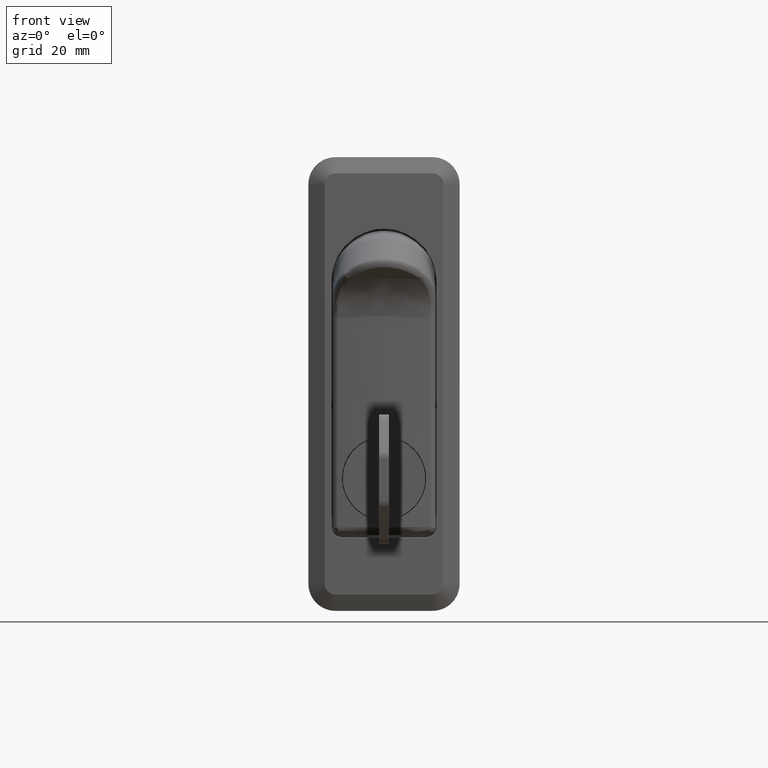
[diagram: clean part render]
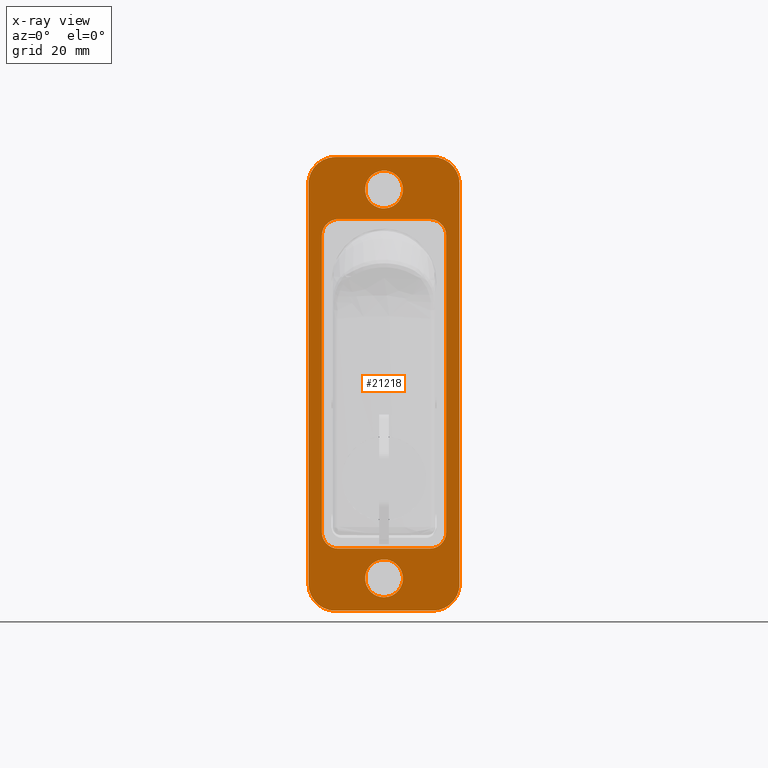
[diagram: x-ray — body ghosted, one internal face saturated and labeled with its STEP entity id]
A machine part, front view, then the same camera in x-ray: the body is ghosted and one INTERNAL B-rep face — a face not visible from any outside direction — is saturated and labeled: STEP entity #21218.
In plain terms, the highlighted face is a freeform B-spline surface patch.
Its self-contained STEP definition (entity closure, byte-faithful):
#15078=CARTESIAN_POINT('',(-3.784089E-015,-3.493471794427236,-55.213669889179393));
#15079=VERTEX_POINT('',#15078);
#15085=CARTESIAN_POINT('',(-3.765665E-015,0.0,-58.500000000000092));
#15086=VERTEX_POINT('',#15085);
#15087=CARTESIAN_POINT('',(-3.765665E-015,0.0,-58.500000000000092));
#15088=CARTESIAN_POINT('',(-3.765665E-015,-3.292471232645310,-58.500000000000078));
#15089=CARTESIAN_POINT('',(-3.784089E-015,-3.493471794427237,-55.213669889179386));
#15097=(BOUNDED_CURVE()B_SPLINE_CURVE(2,(#15087,#15088,#15089),.UNSPECIFIED.,.F.,.U.)B_SPLINE_CURVE_WITH_KNOTS((3,3),(0.500000000000000,0.739332962162213),.UNSPECIFIED.)CURVE()GEOMETRIC_REPRESENTATION_ITEM()RATIONAL_B_SPLINE_CURVE((1.0,0.719603993376605,0.976072041502271))REPRESENTATION_ITEM(''));
#15098=EDGE_CURVE('',#15086,#15079,#15097,.T.);
#15100=CARTESIAN_POINT('',(-3.792348E-015,3.475533342246085,-54.586880178475603));
#15101=VERTEX_POINT('',#15100);
#15102=CARTESIAN_POINT('',(-3.792348E-015,3.475533342246085,-54.586880178475603));
#15103=CARTESIAN_POINT('',(-3.765665E-015,3.500000000000086,-54.792715580990183));
#15104=CARTESIAN_POINT('',(-3.765665E-015,3.500000000000085,-55.0));
#15105=CARTESIAN_POINT('',(-3.765665E-015,3.500000000000084,-58.500000000000078));
#15106=CARTESIAN_POINT('',(-3.765665E-015,0.0,-58.500000000000092));
#15114=(BOUNDED_CURVE()B_SPLINE_CURVE(2,(#15102,#15103,#15104,#15105,#15106),.UNSPECIFIED.,.F.,.U.)B_SPLINE_CURVE_WITH_KNOTS((3,2,3),(0.229562473493691,0.250000000000000,0.500000000000000),.UNSPECIFIED.)CURVE()GEOMETRIC_REPRESENTATION_ITEM()RATIONAL_B_SPLINE_CURVE((0.956026754144856,0.976055948307927,1.0,0.707106781186547,1.0))REPRESENTATION_ITEM(''));
#15115=EDGE_CURVE('',#15101,#15086,#15114,.T.);
#15145=CARTESIAN_POINT('',(-3.765665E-015,0.0,-51.499999999999922));
#15146=VERTEX_POINT('',#15145);
#15147=CARTESIAN_POINT('',(-3.765665E-015,0.0,-51.499999999999922));
#15148=CARTESIAN_POINT('',(-3.765665E-015,3.108610840423213,-51.499999999999908));
#15149=CARTESIAN_POINT('',(-3.792348E-015,3.475533342246085,-54.586880178475603));
#15157=(BOUNDED_CURVE()B_SPLINE_CURVE(2,(#15147,#15148,#15149),.UNSPECIFIED.,.F.,.U.)B_SPLINE_CURVE_WITH_KNOTS((3,3),(0.0,0.229562473493691),.UNSPECIFIED.)CURVE()GEOMETRIC_REPRESENTATION_ITEM()RATIONAL_B_SPLINE_CURVE((1.0,0.731050832878620,0.956026754144856))REPRESENTATION_ITEM(''));
#15158=EDGE_CURVE('',#15146,#15101,#15157,.T.);
#15160=CARTESIAN_POINT('',(-3.784089E-015,-3.493471794427237,-55.213669889179386));
#15161=CARTESIAN_POINT('',(-3.765665E-015,-3.500000000000086,-55.106934672354718));
#15162=CARTESIAN_POINT('',(-3.765665E-015,-3.500000000000085,-55.0));
#15163=CARTESIAN_POINT('',(-3.765665E-015,-3.500000000000084,-51.499999999999908));
#15164=CARTESIAN_POINT('',(-3.765665E-015,0.0,-51.499999999999922));
#15172=(BOUNDED_CURVE()B_SPLINE_CURVE(2,(#15160,#15161,#15162,#15163,#15164),.UNSPECIFIED.,.F.,.U.)B_SPLINE_CURVE_WITH_KNOTS((3,2,3),(0.739332962162212,0.750000000000000,1.0),.UNSPECIFIED.)CURVE()GEOMETRIC_REPRESENTATION_ITEM()RATIONAL_B_SPLINE_CURVE((0.976072041502270,0.987502787809942,1.0,0.707106781186547,1.0))REPRESENTATION_ITEM(''));
#15173=EDGE_CURVE('',#15079,#15146,#15172,.T.);
#15406=CARTESIAN_POINT('',(-3.784089E-015,-3.493471794427236,16.786330110820600));
#15407=VERTEX_POINT('',#15406);
#15413=CARTESIAN_POINT('',(-3.765665E-015,0.0,13.499999999999920));
#15414=VERTEX_POINT('',#15413);
#15415=CARTESIAN_POINT('',(-3.765665E-015,0.0,13.499999999999920));
#15416=CARTESIAN_POINT('',(-3.765665E-015,-3.292471232645269,13.499999999999915));
#15417=CARTESIAN_POINT('',(-3.784089E-015,-3.493471794427237,16.786330110820600));
#15425=(BOUNDED_CURVE()B_SPLINE_CURVE(2,(#15415,#15416,#15417),.UNSPECIFIED.,.F.,.U.)B_SPLINE_CURVE_WITH_KNOTS((3,3),(0.500000000000000,0.739332962162211),.UNSPECIFIED.)CURVE()GEOMETRIC_REPRESENTATION_ITEM()RATIONAL_B_SPLINE_CURVE((1.0,0.719603993376607,0.976072041502266))REPRESENTATION_ITEM(''));
#15426=EDGE_CURVE('',#15414,#15407,#15425,.T.);
#15428=CARTESIAN_POINT('',(-3.792348E-015,3.475533342246085,17.413119821524401));
#15429=VERTEX_POINT('',#15428);
#15430=CARTESIAN_POINT('',(-3.792348E-015,3.475533342246085,17.413119821524401));
#15431=CARTESIAN_POINT('',(-3.765665E-015,3.500000000000085,17.207284419009810));
#15432=CARTESIAN_POINT('',(-3.765665E-015,3.500000000000085,17.0));
#15433=CARTESIAN_POINT('',(-3.765665E-015,3.500000000000084,13.499999999999917));
#15434=CARTESIAN_POINT('',(-3.765665E-015,0.0,13.499999999999920));
#15442=(BOUNDED_CURVE()B_SPLINE_CURVE(2,(#15430,#15431,#15432,#15433,#15434),.UNSPECIFIED.,.F.,.U.)B_SPLINE_CURVE_WITH_KNOTS((3,2,3),(0.229562473493691,0.250000000000000,0.500000000000000),.UNSPECIFIED.)CURVE()GEOMETRIC_REPRESENTATION_ITEM()RATIONAL_B_SPLINE_CURVE((0.956026754144857,0.976055948307928,1.0,0.707106781186547,1.0))REPRESENTATION_ITEM(''));
#15443=EDGE_CURVE('',#15429,#15414,#15442,.T.);
#15473=CARTESIAN_POINT('',(-3.765665E-015,0.0,20.500000000000089));
#15474=VERTEX_POINT('',#15473);
#15475=CARTESIAN_POINT('',(-3.765665E-015,0.0,20.500000000000089));
#15476=CARTESIAN_POINT('',(-3.765665E-015,3.108610840423220,20.500000000000089));
#15477=CARTESIAN_POINT('',(-3.792348E-015,3.475533342246086,17.413119821524397));
#15485=(BOUNDED_CURVE()B_SPLINE_CURVE(2,(#15475,#15476,#15477),.UNSPECIFIED.,.F.,.U.)B_SPLINE_CURVE_WITH_KNOTS((3,3),(0.0,0.229562473493691),.UNSPECIFIED.)CURVE()GEOMETRIC_REPRESENTATION_ITEM()RATIONAL_B_SPLINE_CURVE((1.0,0.731050832878620,0.956026754144857))REPRESENTATION_ITEM(''));
#15486=EDGE_CURVE('',#15474,#15429,#15485,.T.);
#15488=CARTESIAN_POINT('',(-3.784089E-015,-3.493471794427236,16.786330110820604));
#15489=CARTESIAN_POINT('',(-3.765665E-015,-3.500000000000085,16.893065327645278));
#15490=CARTESIAN_POINT('',(-3.765665E-015,-3.500000000000085,17.0));
#15491=CARTESIAN_POINT('',(-3.765665E-015,-3.500000000000084,20.500000000000096));
#15492=CARTESIAN_POINT('',(-3.765665E-015,0.0,20.500000000000089));
#15500=(BOUNDED_CURVE()B_SPLINE_CURVE(2,(#15488,#15489,#15490,#15491,#15492),.UNSPECIFIED.,.F.,.U.)B_SPLINE_CURVE_WITH_KNOTS((3,2,3),(0.739332962162212,0.750000000000000,1.0),.UNSPECIFIED.)CURVE()GEOMETRIC_REPRESENTATION_ITEM()RATIONAL_B_SPLINE_CURVE((0.976072041502268,0.987502787809941,1.0,0.707106781186547,1.0))REPRESENTATION_ITEM(''));
#15501=EDGE_CURVE('',#15407,#15474,#15500,.T.);
#19096=CARTESIAN_POINT('',(-7.327472E-015,-8.500000000000000,-49.489897959078512));
#19097=VERTEX_POINT('',#19096);
#19113=CARTESIAN_POINT('',(0.0,-11.500000000000000,-46.489246068311303));
#19114=VERTEX_POINT('',#19113);
#19128=CARTESIAN_POINT('',(-7.327472E-015,-8.500000000000000,-49.489897959078512));
#19129=CARTESIAN_POINT('',(-7.327472E-015,-8.698103322389844,-49.489897959078512));
#19130=CARTESIAN_POINT('',(7.204405E-031,-8.892896891382499,-49.470464223345637));
#19131=CARTESIAN_POINT('',(0.0,-9.180325795504636,-49.413356023636879));
#19132=CARTESIAN_POINT('',(0.0,-9.275335958924444,-49.389625736119669));
#19133=CARTESIAN_POINT('',(0.0,-9.463720951000243,-49.332563036751182));
#19134=CARTESIAN_POINT('',(0.0,-9.557353599196350,-49.299068871915452));
#19135=CARTESIAN_POINT('',(0.0,-9.829725442996553,-49.186214701680832));
#19136=CARTESIAN_POINT('',(0.0,-10.001972119500820,-49.094134890425622));
#19137=CARTESIAN_POINT('',(0.0,-10.205718896117460,-48.958172897548728));
#19138=CARTESIAN_POINT('',(0.0,-10.245884972545699,-48.929928003611032));
#19139=CARTESIAN_POINT('',(0.0,-10.325031998851429,-48.871299718682252));
#19140=CARTESIAN_POINT('',(0.0,-10.364112700447260,-48.840832943835331));
#19141=CARTESIAN_POINT('',(0.0,-10.478758899893210,-48.746795946410337));
#19142=CARTESIAN_POINT('',(0.0,-10.551504898647870,-48.680824071836170));
#19143=CARTESIAN_POINT('',(0.0,-10.759034846699000,-48.473375175262419));
#19144=CARTESIAN_POINT('',(0.0,-10.883211940670121,-48.322454971470933));
#19145=CARTESIAN_POINT('',(0.0,-11.020295832165610,-48.117657095446759));
#19146=CARTESIAN_POINT('',(0.0,-11.046865896547050,-48.075763451785491));
#19147=CARTESIAN_POINT('',(0.0,-11.097680526473390,-47.991079613937927));
#19148=CARTESIAN_POINT('',(0.0,-11.121948433691630,-47.948269167763222));
#19149=CARTESIAN_POINT('',(0.0,-11.191397228103391,-47.818458274952953));
#19150=CARTESIAN_POINT('',(0.0,-11.275065019801090,-47.641704799631057));
#19151=CARTESIAN_POINT('',(0.0,-11.341144418183710,-47.457718933968863));
#19152=CARTESIAN_POINT('',(0.0,-11.384019816906489,-47.316980995870992));
#19153=CARTESIAN_POINT('',(0.0,-11.397195620824309,-47.269609449695473));
#19154=CARTESIAN_POINT('',(0.0,-11.421275574369620,-47.173932247545352));
#19155=CARTESIAN_POINT('',(0.0,-11.432193215952481,-47.125538149331582));
#19156=CARTESIAN_POINT('',(0.0,-11.480577007297621,-46.883290541038100));
#19157=CARTESIAN_POINT('',(0.0,-11.500000000000000,-46.687348171504652));
#19158=CARTESIAN_POINT('',(0.0,-11.500000000000000,-46.489246068311303));
#19159=B_SPLINE_CURVE_WITH_KNOTS('',3,(#19128,#19129,#19130,#19131,#19132,#19133,#19134,#19135,#19136,#19137,#19138,#19139,#19140,#19141,#19142,#19143,#19144,#19145,#19146,#19147,#19148,#19149,#19150,#19151,#19152,#19153,#19154,#19155,#19156,#19157,#19158),.UNSPECIFIED.,.F.,.U.,(4,2,2,2,2,2,2,2,2,2,2,1,2,2,2,4),(0.0,0.124999999999998,0.187499999999997,0.249999999999996,0.374999999999994,0.406249999999993,0.437499999999993,0.499999999999994,0.624999999999997,0.656249999999996,0.687499999999996,0.749999999999994,0.812499999999993,0.843749999999994,0.874999999999995,1.0),.UNSPECIFIED.);
#19160=EDGE_CURVE('',#19097,#19114,#19159,.T.);
#19182=CARTESIAN_POINT('',(0.0,11.500000000000000,-46.489246068311303));
#19183=VERTEX_POINT('',#19182);
#19184=CARTESIAN_POINT('',(-7.327472E-015,8.500000000000000,-49.489897959078512));
#19185=VERTEX_POINT('',#19184);
#19186=CARTESIAN_POINT('',(0.0,11.500000000000000,-46.489246068311303));
#19187=CARTESIAN_POINT('',(0.0,11.500000000000000,-46.687348891419688));
#19188=CARTESIAN_POINT('',(0.0,11.480579209198069,-46.882144484452347));
#19189=CARTESIAN_POINT('',(0.0,11.423507273291310,-47.169579752218283));
#19190=CARTESIAN_POINT('',(0.0,11.399791922928140,-47.264592599082839));
#19191=CARTESIAN_POINT('',(0.0,11.342764823181369,-47.452984090591130));
#19192=CARTESIAN_POINT('',(0.0,11.309290184363601,-47.546624505002796));
#19193=CARTESIAN_POINT('',(0.0,11.196496636479729,-47.819028274399763));
#19194=CARTESIAN_POINT('',(0.0,11.104463693343250,-47.991299730419087));
#19195=CARTESIAN_POINT('',(0.0,10.968567154026870,-48.195081188096751));
#19196=CARTESIAN_POINT('',(0.0,10.940335700268211,-48.235254389376529));
#19197=CARTESIAN_POINT('',(0.0,10.881734987282460,-48.314416038431020));
#19198=CARTESIAN_POINT('',(0.0,10.851283490346370,-48.353503025297748));
#19199=CARTESIAN_POINT('',(0.0,10.757277731731470,-48.468186481660112));
#19200=CARTESIAN_POINT('',(0.0,10.691326872582881,-48.540956718252339));
#19201=CARTESIAN_POINT('',(0.0,10.483941618008860,-48.748557686328986));
#19202=CARTESIAN_POINT('',(0.0,10.333064634973040,-48.872779889597588));
#19203=CARTESIAN_POINT('',(0.0,10.128321891863489,-49.009917409272703));
#19204=CARTESIAN_POINT('',(0.0,10.086438657043811,-49.036498683091132));
#19205=CARTESIAN_POINT('',(0.0,10.001762990727521,-49.087342113107752));
#19206=CARTESIAN_POINT('',(0.0,9.958956662083107,-49.111623688501723));
#19207=CARTESIAN_POINT('',(0.0,9.829158260518708,-49.181111442307483));
#19208=CARTESIAN_POINT('',(0.0,9.652421793891209,-49.264825698395228));
#19209=CARTESIAN_POINT('',(0.0,9.468454106033995,-49.330941915599261));
#19210=CARTESIAN_POINT('',(0.0,9.327730340383361,-49.373841493507683));
#19211=CARTESIAN_POINT('',(0.0,9.280363610469848,-49.387024788775832));
#19212=CARTESIAN_POINT('',(0.0,9.184696246335951,-49.411118611852260));
#19213=CARTESIAN_POINT('',(0.0,9.136304201934978,-49.422043395851013));
#19214=CARTESIAN_POINT('',(0.0,8.894050096174016,-49.470461727519762));
#19215=CARTESIAN_POINT('',(0.0,8.698104069230965,-49.489897959078512));
#19216=CARTESIAN_POINT('',(0.0,8.500000000000000,-49.489897959078512));
#19217=B_SPLINE_CURVE_WITH_KNOTS('',3,(#19186,#19187,#19188,#19189,#19190,#19191,#19192,#19193,#19194,#19195,#19196,#19197,#19198,#19199,#19200,#19201,#19202,#19203,#19204,#19205,#19206,#19207,#19208,#19209,#19210,#19211,#19212,#19213,#19214,#19215,#19216),.UNSPECIFIED.,.F.,.U.,(4,2,2,2,2,2,2,2,2,2,2,1,2,2,2,4),(0.0,0.125000000000000,0.187499999999998,0.249999999999995,0.374999999999990,0.406249999999989,0.437499999999989,0.499999999999990,0.624999999999990,0.656249999999990,0.687499999999991,0.749999999999992,0.812499999999993,0.843749999999994,0.874999999999995,1.0),.UNSPECIFIED.);
#19218=EDGE_CURVE('',#19183,#19185,#19217,.T.);
#19381=CARTESIAN_POINT('',(0.0,8.500000000000000,11.500000000000000));
#19382=VERTEX_POINT('',#19381);
#19389=CARTESIAN_POINT('',(0.0,11.500000000000000,8.500000000000000));
#19390=VERTEX_POINT('',#19389);
#19396=CARTESIAN_POINT('',(0.0,11.500000000000000,8.500000000000000));
#19397=CARTESIAN_POINT('',(0.0,11.500000000000000,11.500000000000000));
#19398=CARTESIAN_POINT('',(0.0,8.500000000000000,11.500000000000000));
#19406=(BOUNDED_CURVE()B_SPLINE_CURVE(2,(#19396,#19397,#19398),.UNSPECIFIED.,.F.,.U.)CURVE()GEOMETRIC_REPRESENTATION_ITEM()QUASI_UNIFORM_CURVE()RATIONAL_B_SPLINE_CURVE((1.0,0.707106781186548,1.0))REPRESENTATION_ITEM(''));
#19407=EDGE_CURVE('',#19390,#19382,#19406,.T.);
#19457=CARTESIAN_POINT('',(0.0,-11.500000000000000,8.500000000000000));
#19458=VERTEX_POINT('',#19457);
#19465=CARTESIAN_POINT('',(0.0,-8.500000000000000,11.500000000000000));
#19466=VERTEX_POINT('',#19465);
#19472=CARTESIAN_POINT('',(0.0,-8.500000000000000,11.500000000000000));
#19473=CARTESIAN_POINT('',(0.0,-11.500000000000000,11.500000000000000));
#19474=CARTESIAN_POINT('',(0.0,-11.500000000000000,8.500000000000000));
#19482=(BOUNDED_CURVE()B_SPLINE_CURVE(2,(#19472,#19473,#19474),.UNSPECIFIED.,.F.,.U.)CURVE()GEOMETRIC_REPRESENTATION_ITEM()QUASI_UNIFORM_CURVE()RATIONAL_B_SPLINE_CURVE((1.0,0.707106781186548,1.0))REPRESENTATION_ITEM(''));
#19483=EDGE_CURVE('',#19466,#19458,#19482,.T.);
#20336=CARTESIAN_POINT('',(0.0,-11.500000000000000,-46.489246068311303));
#20337=CARTESIAN_POINT('',(0.0,-11.500000000000000,8.500000000000000));
#20338=QUASI_UNIFORM_CURVE('',1,(#20336,#20337),.UNSPECIFIED.,.F.,.U.);
#20339=EDGE_CURVE('',#19114,#19458,#20338,.T.);
#20356=CARTESIAN_POINT('',(0.0,11.500000000000000,-46.489246068311303));
#20357=CARTESIAN_POINT('',(0.0,11.500000000000000,8.500000000000000));
#20358=QUASI_UNIFORM_CURVE('',1,(#20356,#20357),.UNSPECIFIED.,.F.,.U.);
#20359=EDGE_CURVE('',#19183,#19390,#20358,.T.);
#20391=CARTESIAN_POINT('',(-7.327472E-015,8.500000000000000,-49.489897959078512));
#20392=CARTESIAN_POINT('',(-7.327472E-015,-8.500000000000000,-49.489897959078512));
#20393=QUASI_UNIFORM_CURVE('',1,(#20391,#20392),.UNSPECIFIED.,.F.,.U.);
#20394=EDGE_CURVE('',#19185,#19097,#20393,.T.);
#20509=CARTESIAN_POINT('',(0.0,8.500000000000000,11.500000000000000));
#20510=CARTESIAN_POINT('',(0.0,-8.500000000000000,11.500000000000000));
#20511=QUASI_UNIFORM_CURVE('',1,(#20509,#20510),.UNSPECIFIED.,.F.,.U.);
#20512=EDGE_CURVE('',#19382,#19466,#20511,.T.);
#20679=CARTESIAN_POINT('',(0.0,9.0,23.0));
#20680=VERTEX_POINT('',#20679);
#20687=CARTESIAN_POINT('',(0.0,-9.0,23.0));
#20688=VERTEX_POINT('',#20687);
#20694=CARTESIAN_POINT('',(0.0,-9.0,23.0));
#20695=CARTESIAN_POINT('',(0.0,9.0,23.0));
#20696=QUASI_UNIFORM_CURVE('',1,(#20694,#20695),.UNSPECIFIED.,.F.,.U.);
#20697=EDGE_CURVE('',#20688,#20680,#20696,.T.);
#20718=CARTESIAN_POINT('',(0.0,-14.0,18.0));
#20719=VERTEX_POINT('',#20718);
#20725=CARTESIAN_POINT('',(0.0,-14.0,18.0));
#20726=CARTESIAN_POINT('',(0.0,-13.999999999999998,22.999999999999993));
#20727=CARTESIAN_POINT('',(0.0,-9.0,23.0));
#20735=(BOUNDED_CURVE()B_SPLINE_CURVE(2,(#20725,#20726,#20727),.UNSPECIFIED.,.F.,.U.)CURVE()GEOMETRIC_REPRESENTATION_ITEM()QUASI_UNIFORM_CURVE()RATIONAL_B_SPLINE_CURVE((1.0,0.707106781186548,1.0))REPRESENTATION_ITEM(''));
#20736=EDGE_CURVE('',#20719,#20688,#20735,.T.);
#20748=CARTESIAN_POINT('',(0.0,-14.0,-56.0));
#20749=VERTEX_POINT('',#20748);
#20755=CARTESIAN_POINT('',(0.0,-14.0,-56.0));
#20756=CARTESIAN_POINT('',(0.0,-14.0,18.0));
#20757=QUASI_UNIFORM_CURVE('',1,(#20755,#20756),.UNSPECIFIED.,.F.,.U.);
#20758=EDGE_CURVE('',#20749,#20719,#20757,.T.);
#20779=CARTESIAN_POINT('',(0.0,-9.0,-61.0));
#20780=VERTEX_POINT('',#20779);
#20786=CARTESIAN_POINT('',(0.0,-9.0,-61.0));
#20787=CARTESIAN_POINT('',(0.0,-13.999999999999998,-60.999999999999993));
#20788=CARTESIAN_POINT('',(0.0,-14.0,-56.0));
#20796=(BOUNDED_CURVE()B_SPLINE_CURVE(2,(#20786,#20787,#20788),.UNSPECIFIED.,.F.,.U.)CURVE()GEOMETRIC_REPRESENTATION_ITEM()QUASI_UNIFORM_CURVE()RATIONAL_B_SPLINE_CURVE((1.0,0.707106781186548,1.0))REPRESENTATION_ITEM(''));
#20797=EDGE_CURVE('',#20780,#20749,#20796,.T.);
#20809=CARTESIAN_POINT('',(0.0,9.0,-61.0));
#20810=VERTEX_POINT('',#20809);
#20816=CARTESIAN_POINT('',(0.0,9.0,-61.0));
#20817=CARTESIAN_POINT('',(0.0,-9.0,-61.0));
#20818=QUASI_UNIFORM_CURVE('',1,(#20816,#20817),.UNSPECIFIED.,.F.,.U.);
#20819=EDGE_CURVE('',#20810,#20780,#20818,.T.);
#20840=CARTESIAN_POINT('',(0.0,14.0,-56.0));
#20841=VERTEX_POINT('',#20840);
#20847=CARTESIAN_POINT('',(0.0,14.0,-56.0));
#20848=CARTESIAN_POINT('',(0.0,13.999999999999998,-60.999999999999993));
#20849=CARTESIAN_POINT('',(0.0,9.0,-61.0));
#20857=(BOUNDED_CURVE()B_SPLINE_CURVE(2,(#20847,#20848,#20849),.UNSPECIFIED.,.F.,.U.)CURVE()GEOMETRIC_REPRESENTATION_ITEM()QUASI_UNIFORM_CURVE()RATIONAL_B_SPLINE_CURVE((1.0,0.707106781186548,1.0))REPRESENTATION_ITEM(''));
#20858=EDGE_CURVE('',#20841,#20810,#20857,.T.);
#20870=CARTESIAN_POINT('',(0.0,14.0,18.0));
#20871=VERTEX_POINT('',#20870);
#20877=CARTESIAN_POINT('',(0.0,14.0,18.0));
#20878=CARTESIAN_POINT('',(0.0,14.0,-56.0));
#20879=QUASI_UNIFORM_CURVE('',1,(#20877,#20878),.UNSPECIFIED.,.F.,.U.);
#20880=EDGE_CURVE('',#20871,#20841,#20879,.T.);
#20902=CARTESIAN_POINT('',(0.0,9.0,23.0));
#20903=CARTESIAN_POINT('',(0.0,13.999999999999998,22.999999999999993));
#20904=CARTESIAN_POINT('',(0.0,14.0,18.0));
#20912=(BOUNDED_CURVE()B_SPLINE_CURVE(2,(#20902,#20903,#20904),.UNSPECIFIED.,.F.,.U.)CURVE()GEOMETRIC_REPRESENTATION_ITEM()QUASI_UNIFORM_CURVE()RATIONAL_B_SPLINE_CURVE((1.0,0.707106781186548,1.0))REPRESENTATION_ITEM(''));
#20913=EDGE_CURVE('',#20680,#20871,#20912,.T.);
#21181=CARTESIAN_POINT('',(0.0,15.398599945730570,27.195799837191700));
#21182=CARTESIAN_POINT('',(0.0,-15.398600696749090,27.195799837191700));
#21183=CARTESIAN_POINT('',(0.0,15.398599945730570,-65.195802090247284));
#21184=CARTESIAN_POINT('',(0.0,-15.398600696749090,-65.195802090247284));
#21185=B_SPLINE_SURFACE_WITH_KNOTS('',1,1,((#21181,#21183),(#21182,#21184)),.UNSPECIFIED.,.F.,.F.,.U.,(2,2),(2,2),(0.0,30.797200642479670),(0.0,92.391601927438984),.UNSPECIFIED.);
#21186=ORIENTED_EDGE('',*,*,#20913,.F.);
#21187=ORIENTED_EDGE('',*,*,#20697,.F.);
#21188=ORIENTED_EDGE('',*,*,#20736,.F.);
#21189=ORIENTED_EDGE('',*,*,#20758,.F.);
#21190=ORIENTED_EDGE('',*,*,#20797,.F.);
#21191=ORIENTED_EDGE('',*,*,#20819,.F.);
#21192=ORIENTED_EDGE('',*,*,#20858,.F.);
#21193=ORIENTED_EDGE('',*,*,#20880,.F.);
#21194=EDGE_LOOP('',(#21186,#21187,#21188,#21189,#21190,#21191,#21192,#21193));
#21195=FACE_OUTER_BOUND('',#21194,.T.);
#21196=ORIENTED_EDGE('',*,*,#20394,.T.);
#21197=ORIENTED_EDGE('',*,*,#19160,.T.);
#21198=ORIENTED_EDGE('',*,*,#20339,.T.);
#21199=ORIENTED_EDGE('',*,*,#19483,.F.);
#21200=ORIENTED_EDGE('',*,*,#20512,.F.);
#21201=ORIENTED_EDGE('',*,*,#19407,.F.);
#21202=ORIENTED_EDGE('',*,*,#20359,.F.);
#21203=ORIENTED_EDGE('',*,*,#19218,.T.);
#21204=EDGE_LOOP('',(#21196,#21197,#21198,#21199,#21200,#21201,#21202,#21203));
#21205=FACE_BOUND('',#21204,.T.);
#21206=ORIENTED_EDGE('',*,*,#15426,.T.);
#21207=ORIENTED_EDGE('',*,*,#15501,.T.);
#21208=ORIENTED_EDGE('',*,*,#15486,.T.);
#21209=ORIENTED_EDGE('',*,*,#15443,.T.);
#21210=EDGE_LOOP('',(#21206,#21207,#21208,#21209));
#21211=FACE_BOUND('',#21210,.T.);
#21212=ORIENTED_EDGE('',*,*,#15098,.T.);
#21213=ORIENTED_EDGE('',*,*,#15173,.T.);
#21214=ORIENTED_EDGE('',*,*,#15158,.T.);
#21215=ORIENTED_EDGE('',*,*,#15115,.T.);
#21216=EDGE_LOOP('',(#21212,#21213,#21214,#21215));
#21217=FACE_BOUND('',#21216,.T.);
#21218=ADVANCED_FACE('',(#21195,#21205,#21211,#21217),#21185,.T.);